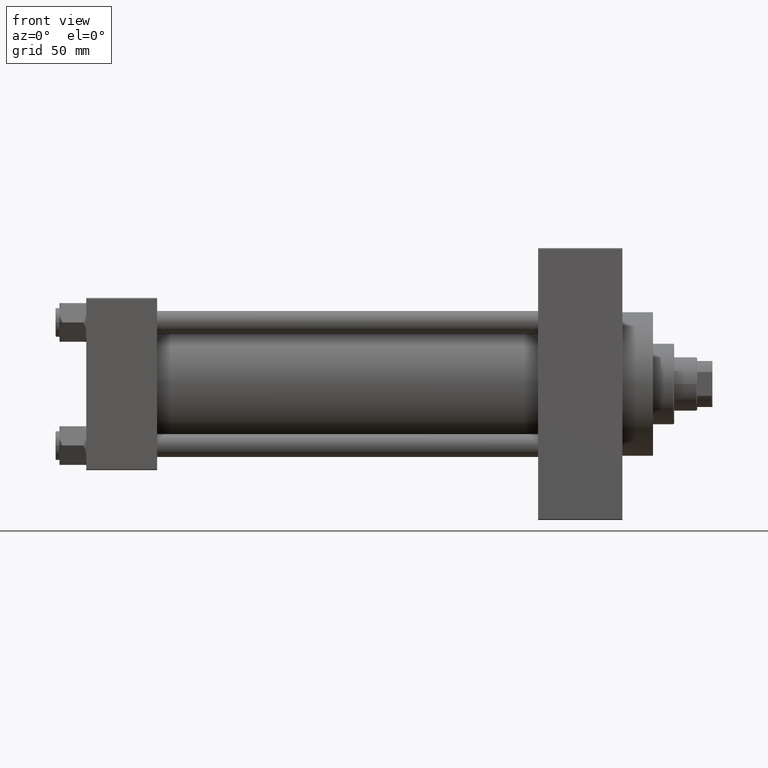
[diagram: clean part render]
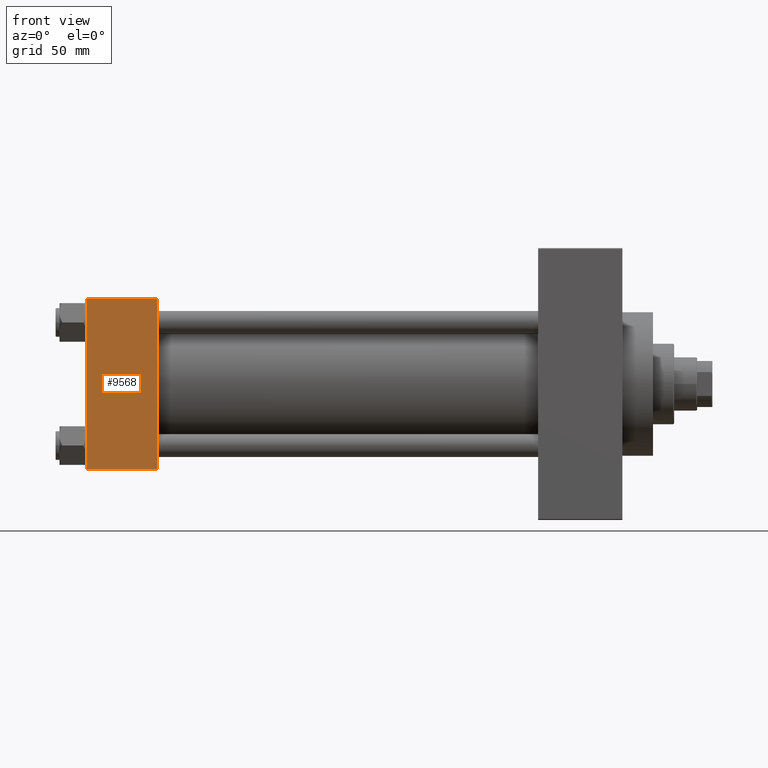
[diagram: same view with one face highlighted and labeled with its STEP entity id]
A machine part, front view. The second image highlights one B-rep face of the part: STEP entity #9568.
In plain terms, the highlighted planar face has unit normal (0, 1, 0).
Its self-contained STEP definition (entity closure, byte-faithful):
#7 = EDGE_CURVE ( 'NONE', #15614, #38642, #5315, .T. ) ;
#259 = DIRECTION ( 'NONE',  ( 0.000000000000000000, 7.709882115452476934E-17, -1.000000000000000000 ) ) ;
#1090 = EDGE_CURVE ( 'NONE', #12362, #38642, #16690, .T. ) ;
#1600 = DIRECTION ( 'NONE',  ( -1.000000000000000000, 0.000000000000000000, 0.000000000000000000 ) ) ;
#2631 = VECTOR ( 'NONE', #30118, 1000.000000000000000 ) ;
#2668 = VECTOR ( 'NONE', #31249, 1000.000000000000000 ) ;
#3293 = FACE_OUTER_BOUND ( 'NONE', #16991, .T. ) ;
#3842 = CARTESIAN_POINT ( 'NONE',  ( 0.000000000000000000, -45.00000000000000711, 45.00000000000000000 ) ) ;
#5315 = LINE ( 'NONE', #8884, #2631 ) ;
#5753 = CARTESIAN_POINT ( 'NONE',  ( 37.00000000000000000, -45.00000000000000711, 44.49999999999997158 ) ) ;
#6344 = LINE ( 'NONE', #20880, #31025 ) ;
#7086 = VECTOR ( 'NONE', #259, 1000.000000000000000 ) ;
#7337 = CARTESIAN_POINT ( 'NONE',  ( 37.00000000000000000, -45.00000000000000711, 45.00000000000000000 ) ) ;
#8884 = CARTESIAN_POINT ( 'NONE',  ( 37.00000000000000000, -45.00000000000000711, 45.00000000000000000 ) ) ;
#9568 = ADVANCED_FACE ( 'NONE', ( #3293 ), #44354, .F. ) ;
#11464 = LINE ( 'NONE', #3842, #7086 ) ;
#12362 = VERTEX_POINT ( 'NONE', #13204 ) ;
#13204 = CARTESIAN_POINT ( 'NONE',  ( 0.000000000000000000, -45.00000000000000000, -44.49999999999995737 ) ) ;
#14151 = CARTESIAN_POINT ( 'NONE',  ( 37.00000000000000000, -45.00000000000000000, -44.49999999999995737 ) ) ;
#14417 = ORIENTED_EDGE ( 'NONE', *, *, #1090, .T. ) ;
#15614 = VERTEX_POINT ( 'NONE', #5753 ) ;
#16690 = LINE ( 'NONE', #27895, #2668 ) ;
#16991 = EDGE_LOOP ( 'NONE', ( #34237, #14417, #27432, #24441 ) ) ;
#20880 = CARTESIAN_POINT ( 'NONE',  ( 37.00000000000000000, -45.00000000000000711, 44.49999999999997158 ) ) ;
#21876 = DIRECTION ( 'NONE',  ( -0.000000000000000000, 1.000000000000000000, 7.709882115452478166E-17 ) ) ;
#23763 = VERTEX_POINT ( 'NONE', #43122 ) ;
#24441 = ORIENTED_EDGE ( 'NONE', *, *, #37339, .T. ) ;
#26387 = AXIS2_PLACEMENT_3D ( 'NONE', #7337, #21876, #44104 ) ;
#27432 = ORIENTED_EDGE ( 'NONE', *, *, #7, .F. ) ;
#27895 = CARTESIAN_POINT ( 'NONE',  ( 37.00000000000000000, -45.00000000000000000, -44.49999999999998579 ) ) ;
#30118 = DIRECTION ( 'NONE',  ( 0.000000000000000000, 7.709882115452476934E-17, -1.000000000000000000 ) ) ;
#31025 = VECTOR ( 'NONE', #1600, 1000.000000000000000 ) ;
#31249 = DIRECTION ( 'NONE',  ( 1.000000000000000000, 0.000000000000000000, 0.000000000000000000 ) ) ;
#31540 = EDGE_CURVE ( 'NONE', #23763, #12362, #11464, .T. ) ;
#34237 = ORIENTED_EDGE ( 'NONE', *, *, #31540, .T. ) ;
#37339 = EDGE_CURVE ( 'NONE', #15614, #23763, #6344, .T. ) ;
#38642 = VERTEX_POINT ( 'NONE', #14151 ) ;
#43122 = CARTESIAN_POINT ( 'NONE',  ( 0.000000000000000000, -45.00000000000000711, 44.49999999999997158 ) ) ;
#44104 = DIRECTION ( 'NONE',  ( 0.000000000000000000, -7.709882115452478166E-17, 1.000000000000000000 ) ) ;
#44354 = PLANE ( 'NONE',  #26387 ) ;